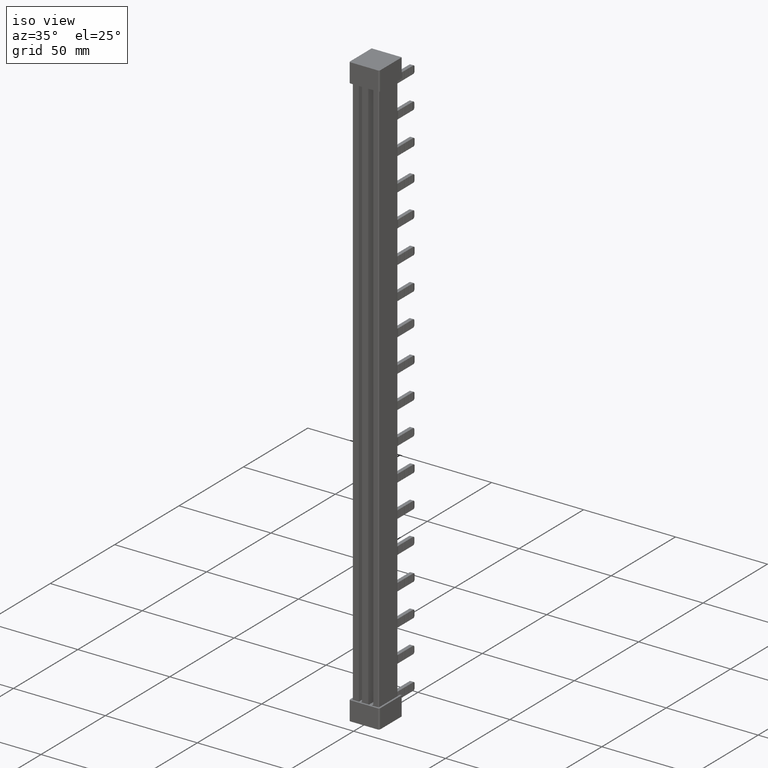
[diagram: clean part render]
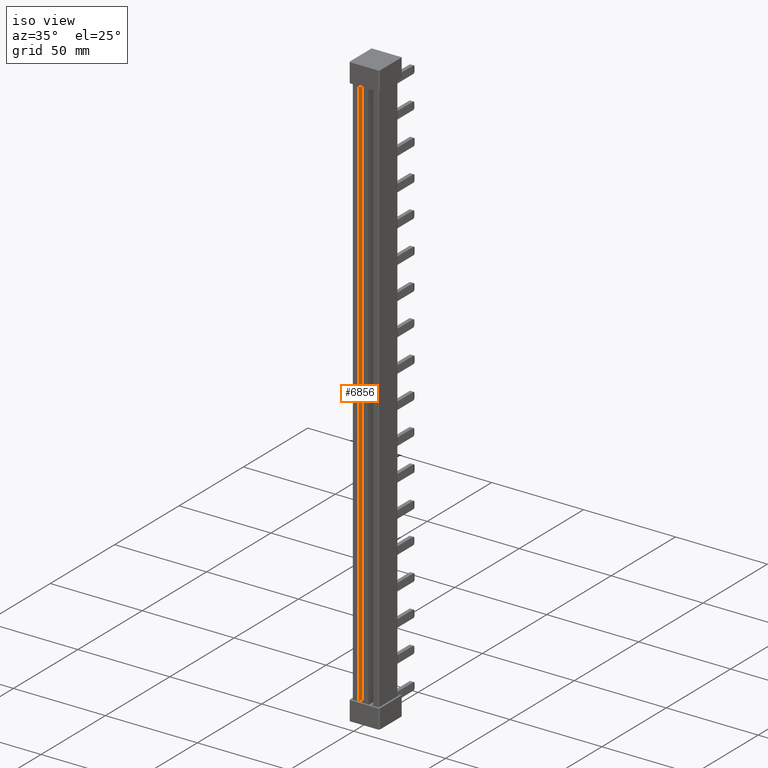
[diagram: same view with one face highlighted and labeled with its STEP entity id]
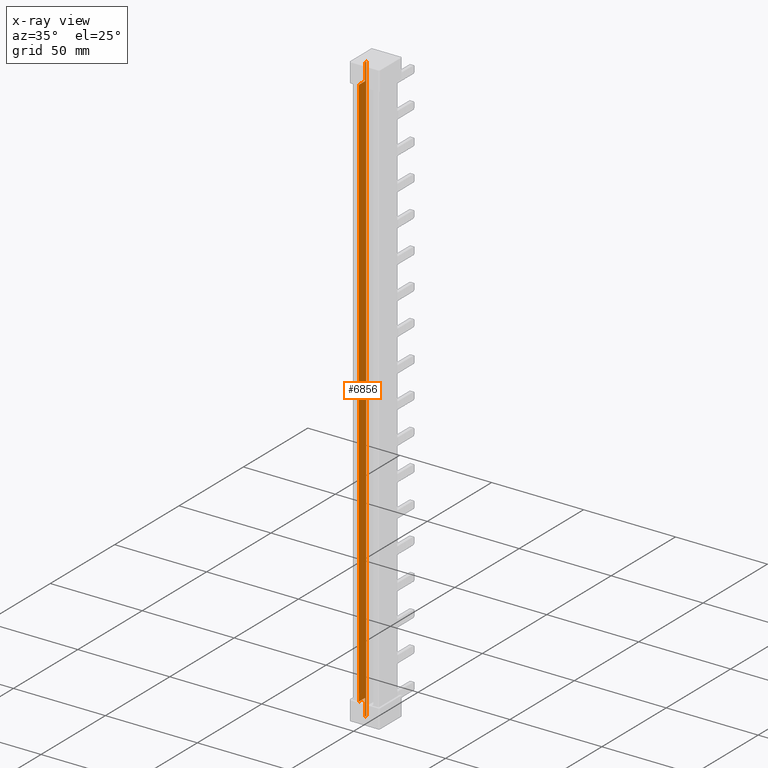
[diagram: x-ray of the same camera — body ghosted, the highlighted face saturated]
A machine part, iso view. The second image highlights one B-rep face of the part: STEP entity #6856.
The next image is the same camera in x-ray: the body ghosted, the highlighted face saturated — about 0% of this face is hidden behind the body in this view.
In plain terms, the highlighted planar face has unit normal (-1, 0, 0).
Its self-contained STEP definition (entity closure, byte-faithful):
#955 = EDGE_CURVE ( 'NONE', #11790, #11740, #14436, .T. ) ;
#971 = EDGE_CURVE ( 'NONE', #11759, #11775, #2333, .T. ) ;
#1021 = EDGE_CURVE ( 'NONE', #11740, #11779, #1638, .T. ) ;
#1031 = EDGE_CURVE ( 'NONE', #11790, #11775, #1661, .T. ) ;
#1101 = EDGE_CURVE ( 'NONE', #11819, #11779, #1865, .T. ) ;
#1153 = EDGE_CURVE ( 'NONE', #11908, #11759, #2041, .T. ) ;
#1161 = EDGE_CURVE ( 'NONE', #11908, #11856, #2071, .T. ) ;
#1163 = EDGE_CURVE ( 'NONE', #11819, #11856, #2054, .T. ) ;
#1638 = LINE ( 'NONE', #1672, #25119 ) ;
#1641 = DIRECTION ( 'NONE',  ( 0.0000000000000000000, 0.0000000000000000000, 1.000000000000000000 ) ) ;
#1647 = CARTESIAN_POINT ( 'NONE',  ( 2.900000000000013700, 0.0000000000000000000, 219.0000000000000000 ) ) ;
#1655 = DIRECTION ( 'NONE',  ( -0.0000000000000000000, 0.0000000000000000000, -1.000000000000000000 ) ) ;
#1661 = LINE ( 'NONE', #1647, #24204 ) ;
#1672 = CARTESIAN_POINT ( 'NONE',  ( 2.900000000000013700, 4.778182006358747500, 219.0000000000000000 ) ) ;
#1865 = LINE ( 'NONE', #1869, #24263 ) ;
#1869 = CARTESIAN_POINT ( 'NONE',  ( 2.900000000000013700, 16.29999999999973100, 217.8000000000571100 ) ) ;
#1870 = DIRECTION ( 'NONE',  ( -0.0000000000000000000, -1.000000000000000000, -0.0000000000000000000 ) ) ;
#2033 = CARTESIAN_POINT ( 'NONE',  ( 2.900000000000013700, 4.778182006356583000, 220.2000000000000200 ) ) ;
#2041 = LINE ( 'NONE', #2033, #24340 ) ;
#2044 = DIRECTION ( 'NONE',  ( 0.0000000000000000000, 0.0000000000000000000, 1.000000000000000000 ) ) ;
#2051 = CARTESIAN_POINT ( 'NONE',  ( 2.900000000000013700, 16.29999999999973100, -103.8000000000571200 ) ) ;
#2054 = LINE ( 'NONE', #2074, #24377 ) ;
#2055 = DIRECTION ( 'NONE',  ( -0.0000000000000000000, -0.0000000000000000000, -1.000000000000000000 ) ) ;
#2070 = DIRECTION ( 'NONE',  ( 0.0000000000000000000, 1.000000000000000000, 0.0000000000000000000 ) ) ;
#2071 = LINE ( 'NONE', #2051, #24365 ) ;
#2074 = CARTESIAN_POINT ( 'NONE',  ( 2.900000000000013700, 5.673275106952147000, 220.2000000000000200 ) ) ;
#2333 = LINE ( 'NONE', #2345, #25039 ) ;
#2345 = CARTESIAN_POINT ( 'NONE',  ( 2.900000000000013700, -11.04623440810184900, -94.60000000005716500 ) ) ;
#2349 = DIRECTION ( 'NONE',  ( 0.0000000000000000000, -1.000000000000000000, 0.0000000000000000000 ) ) ;
#4205 = DIRECTION ( 'NONE',  ( -1.000000000000000000, 0.0000000000000000000, 0.0000000000000000000 ) ) ;
#4224 = CARTESIAN_POINT ( 'NONE',  ( 2.900000000000013700, -8.991461328757369000, 220.2000000000000200 ) ) ;
#4233 = PLANE ( 'NONE',  #32012 ) ;
#4243 = DIRECTION ( 'NONE',  ( 0.0000000000000000000, 0.0000000000000000000, 1.000000000000000000 ) ) ;
#4246 = FACE_OUTER_BOUND ( 'NONE', #28516, .T. ) ;
#6856 = ADVANCED_FACE ( 'NONE', ( #4246 ), #4233, .F. ) ;
#10940 = ORIENTED_EDGE ( 'NONE', *, *, #1153, .F. ) ;
#10952 = ORIENTED_EDGE ( 'NONE', *, *, #971, .F. ) ;
#10954 = ORIENTED_EDGE ( 'NONE', *, *, #1161, .T. ) ;
#10958 = ORIENTED_EDGE ( 'NONE', *, *, #1101, .T. ) ;
#11055 = ORIENTED_EDGE ( 'NONE', *, *, #955, .F. ) ;
#11083 = ORIENTED_EDGE ( 'NONE', *, *, #1021, .F. ) ;
#11105 = ORIENTED_EDGE ( 'NONE', *, *, #1163, .F. ) ;
#11123 = ORIENTED_EDGE ( 'NONE', *, *, #1031, .T. ) ;
#11740 = VERTEX_POINT ( 'NONE', #15941 ) ;
#11759 = VERTEX_POINT ( 'NONE', #16126 ) ;
#11775 = VERTEX_POINT ( 'NONE', #16028 ) ;
#11779 = VERTEX_POINT ( 'NONE', #16116 ) ;
#11790 = VERTEX_POINT ( 'NONE', #16111 ) ;
#11819 = VERTEX_POINT ( 'NONE', #16177 ) ;
#11856 = VERTEX_POINT ( 'NONE', #16153 ) ;
#11908 = VERTEX_POINT ( 'NONE', #16162 ) ;
#14435 = CARTESIAN_POINT ( 'NONE',  ( 2.900000000000013700, -11.04623440810184900, 208.6000000000571500 ) ) ;
#14436 = LINE ( 'NONE', #14435, #25081 ) ;
#14437 = DIRECTION ( 'NONE',  ( 0.0000000000000000000, 1.000000000000000000, 0.0000000000000000000 ) ) ;
#15941 = CARTESIAN_POINT ( 'NONE',  ( 2.900000000000013700, 4.778182006358747500, 208.6000000000571500 ) ) ;
#16028 = CARTESIAN_POINT ( 'NONE',  ( 2.900000000000013700, 0.0000000000000000000, -94.60000000005716500 ) ) ;
#16111 = CARTESIAN_POINT ( 'NONE',  ( 2.900000000000013700, 0.0000000000000000000, 208.6000000000571500 ) ) ;
#16116 = CARTESIAN_POINT ( 'NONE',  ( 2.900000000000013700, 4.778182006357668300, 217.8000000000571400 ) ) ;
#16126 = CARTESIAN_POINT ( 'NONE',  ( 2.900000000000013700, 4.778182006356583000, -94.60000000005713600 ) ) ;
#16153 = CARTESIAN_POINT ( 'NONE',  ( 2.900000000000013700, 5.673275106952147000, -103.8000000000569300 ) ) ;
#16162 = CARTESIAN_POINT ( 'NONE',  ( 2.900000000000013700, 4.778182006356583000, -103.8000000000571400 ) ) ;
#16177 = CARTESIAN_POINT ( 'NONE',  ( 2.900000000000013700, 5.673275106952147000, 217.8000000000571100 ) ) ;
#24204 = VECTOR ( 'NONE', #1655, 1000.000000000000000 ) ;
#24263 = VECTOR ( 'NONE', #1870, 1000.000000000000000 ) ;
#24340 = VECTOR ( 'NONE', #2044, 1000.000000000000000 ) ;
#24365 = VECTOR ( 'NONE', #2070, 1000.000000000000000 ) ;
#24377 = VECTOR ( 'NONE', #2055, 1000.000000000000000 ) ;
#25039 = VECTOR ( 'NONE', #2349, 1000.000000000000000 ) ;
#25081 = VECTOR ( 'NONE', #14437, 1000.000000000000000 ) ;
#25119 = VECTOR ( 'NONE', #1641, 1000.000000000000000 ) ;
#28516 = EDGE_LOOP ( 'NONE', ( #10952, #10940, #10954, #11105, #10958, #11083, #11055, #11123 ) ) ;
#32012 = AXIS2_PLACEMENT_3D ( 'NONE', #4224, #4205, #4243 ) ;